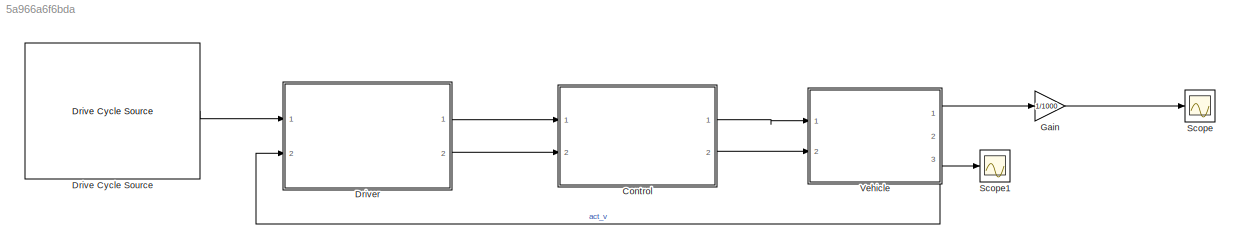
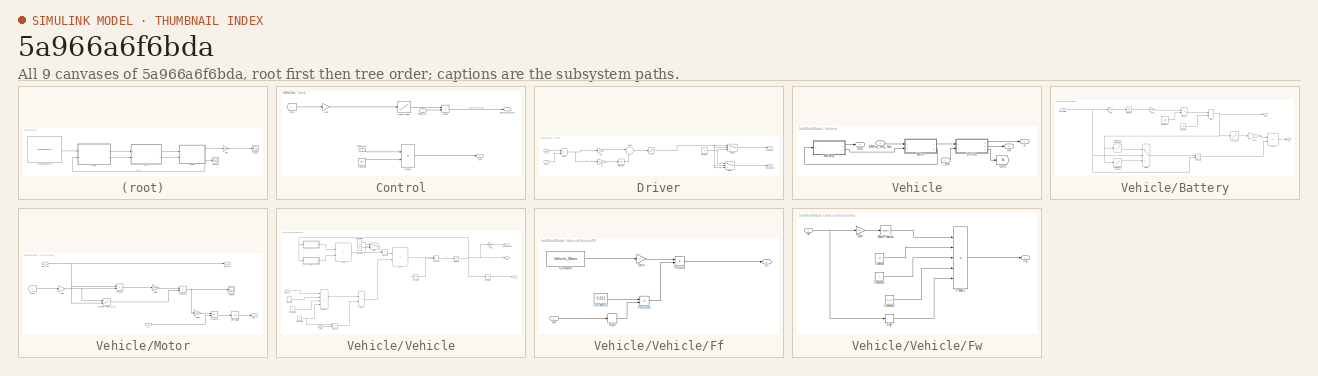
[diagram: thumbnail index - all 9 canvases of the model, root first then tree order]
MODEL slx_5a966a6f6bda
KIND model
CONFIG AbsTol = auto
CONFIG EnableMultiTasking = off
CONFIG FixedStep = 0.1
CONFIG MaxStep = auto
CONFIG MinStep = auto
CONFIG RelTol = 1e-3
CONFIG SampleTimeConstraint = Unconstrained
CONFIG Solver = ode1
CONFIG SolverName = ode1
CONFIG StartTime = 0.0
CONFIG StopTime = 1180*18
BLOCK [SubSystem] Control
  Ports = [2, 2]
  RequestExecContextInheritance = off
BLOCK [Constant] Control/Constant
  Value = 800
BLOCK [Product] Control/Divide
  Inputs = **
  Ports = [2, 1]
BLOCK [Outport] Control/EMTrq_req_Nm
BLOCK [From] Control/From
  TagVisibility = global
BLOCK [Gain] Control/Gain
  Gain = i
BLOCK [Lookup] Control/Lookup Table1
  InputValues = Mot_drive_n
  SaturateOnIntegerOverflow = off
  Table = Mot_drive_ttq
BLOCK [Inport] Control/Peddal_Acc
BLOCK [Inport] Control/Peddal_Brk
  Port = 2
BLOCK [Product] Control/Product
  Ports = [2, 1]
BLOCK [Outport] Control/T_Brk
  Port = 2
BLOCK [Reference] Drive Cycle Source  REF=autolibshared/Drive Cycle Source
  AttributesFormatString = %<cycleVar> (%<tfinal>)
  Ports = [0, 1]
  SourceBlock = autolibshared/Drive Cycle Source
  SourceProductBaseCode = PW,DR,MT,UV,VE
  SourceType = Drive Cycle Source
BLOCK [SubSystem] Driver
  Ports = [2, 2]
  RequestExecContextInheritance = off
BLOCK [Saturate] Driver/-1~1
  LowerLimit = -1
  UpperLimit = 1
BLOCK [Constant] Driver/Constant
  Value = 0
BLOCK [Integrator] Driver/Integrator
  Ports = [1, 1]
BLOCK [Gain] Driver/Ki
  Gain = 0.01
BLOCK [Gain] Driver/Kp
  Gain = 0.4
BLOCK [Outport] Driver/Paddal_Ac
BLOCK [Outport] Driver/Paddal_Brk
  Port = 2
BLOCK [Sum] Driver/Sum
  IconShape = rectangular
  Inputs = +-
  Ports = [2, 1]
BLOCK [Sum] Driver/Sum1
  Inputs = |++
  Ports = [2, 1]
BLOCK [Switch] Driver/Switch1
  InputSameDT = off
  SaturateOnIntegerOverflow = off
BLOCK [Switch] Driver/Switch2
  InputSameDT = off
  SaturateOnIntegerOverflow = off
BLOCK [Inport] Driver/act_v
  Port = 2
BLOCK [Inport] Driver/req_v
BLOCK [Gain] Gain
  Gain = 1/1000
BLOCK [Scope] Scope
  Floating = off
  NumInputPorts = 1
  Ports = [1]
  ScopeSpecificationString = Simulink.scopes.TimeScopeBlockCfg('CurrentConfiguration', extmgr.ConfigurationSet(extmgr.Configuration('Core','General UI',true),extmgr.Configuration('Core','Source UI',true),extmgr.Configuration('Sources','WiredSimulink',true,'DataLoggingVariableName','ScopeData1'),extmgr.Configuration('Visuals','Time Domain',true,'SerializedDisplays',{struct('MinYLimReal','-24.78118','MaxYLimReal','223.03062','Y...<+1447ch>
BLOCK [Scope] Scope1
  Floating = off
  NumInputPorts = 1
  Ports = [1]
  ScopeSpecificationString = Simulink.scopes.TimeScopeBlockCfg('CurrentConfiguration', extmgr.ConfigurationSet(extmgr.Configuration('Core','General UI',true),extmgr.Configuration('Core','Source UI',true),extmgr.Configuration('Sources','WiredSimulink',true,'DataLoggingVariableName','ScopeData2'),extmgr.Configuration('Visuals','Time Domain',true,'SerializedDisplays',{struct('MinYLimReal','-0.07491','MaxYLimReal','1.00832','YLab...<+1423ch>
BLOCK [SubSystem] Vehicle
  Ports = [2, 3]
  RequestExecContextInheritance = off
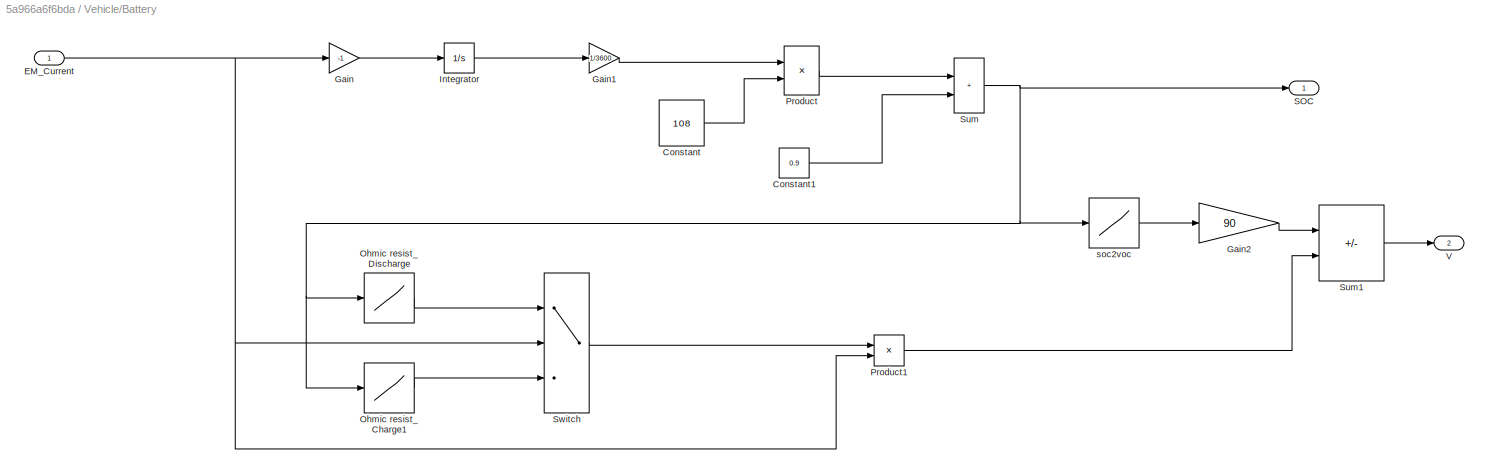
BLOCK [SubSystem] Vehicle/Battery
  Ports = [1, 2]
  RequestExecContextInheritance = off
BLOCK [Constant] Vehicle/Battery/Constant
  Value = 108
BLOCK [Constant] Vehicle/Battery/Constant1
  Value = 0.9
BLOCK [Inport] Vehicle/Battery/EM_Current
BLOCK [Gain] Vehicle/Battery/Gain
  Gain = -1
BLOCK [Gain] Vehicle/Battery/Gain1
  Gain = 1/3600
BLOCK [Gain] Vehicle/Battery/Gain2
  Gain = 90
BLOCK [Integrator] Vehicle/Battery/Integrator
  Ports = [1, 1]
BLOCK [Lookup] Vehicle/Battery/Ohmic resist_Charge1
  InputValues = [0,0.1,0.2,0.4,0.6,0.8,1]
  SaturateOnIntegerOverflow = off
  Table = [0.02536,0.012695,0.0080907,0.006409000000000001,0.006565,0.0071812,0.0074386]
BLOCK [Lookup] Vehicle/Battery/Ohmic resist_Discharge
  InputValues = [0,0.1,0.2,0.4,0.6,0.8,1]
  SaturateOnIntegerOverflow = off
  Table = [0.02536,0.012695,0.0080907,0.006409000000000001,0.006565,0.0071812,0.0074386]
BLOCK [Product] Vehicle/Battery/Product
  Inputs = */
  Ports = [2, 1]
BLOCK [Product] Vehicle/Battery/Product1
  Ports = [2, 1]
BLOCK [Outport] Vehicle/Battery/SOC
BLOCK [Sum] Vehicle/Battery/Sum
  IconShape = rectangular
  Ports = [2, 1]
BLOCK [Sum] Vehicle/Battery/Sum1
  IconShape = rectangular
  Inputs = +-
  Ports = [2, 1]
BLOCK [Switch] Vehicle/Battery/Switch
  Criteria = u2 > Threshold
  InputSameDT = off
  SaturateOnIntegerOverflow = off
BLOCK [Outport] Vehicle/Battery/V
  Port = 2
BLOCK [Lookup] Vehicle/Battery/soc2voc
  InputValues = [0,0.1,0.2,0.4,0.6,0.8,1]
  SaturateOnIntegerOverflow = off
  Table = [3.31144,3.54994000000000013,3.63898,3.72908,3.8329600000000004,3.9771199999999998,4.131880000000001]
BLOCK [Inport] Vehicle/EMTrq_req_Nm
BLOCK [Goto] Vehicle/Goto
  TagVisibility = global
BLOCK [SubSystem] Vehicle/Motor
  Ports = [2, 2]
  RequestExecContextInheritance = off
BLOCK [Outport] Vehicle/Motor/EM_Act
BLOCK [Outport] Vehicle/Motor/EM_I
  Port = 2
BLOCK [Inport] Vehicle/Motor/EM_Trq
BLOCK [From] Vehicle/Motor/From
  TagVisibility = global
BLOCK [Gain] Vehicle/Motor/Gain
  Gain = i
BLOCK [Gain] Vehicle/Motor/Gain1
  Gain = 1/9550
BLOCK [Gain] Vehicle/Motor/Gain2
  Gain = 1000
BLOCK [Lookup2D] Vehicle/Motor/Lookup Table (2-D)
  ColumnIndex = [30,60,92,120,150,180]
  InputSameDT = off
  LookUpMeth = Interpolation-Use End Values
  RowIndex = [500,1000	,2000,3200,4000,5000,6000,7000,8000,9000,10000]
  SaturateOnIntegerOverflow = off
  Table = Mot_eff
BLOCK [Product] Vehicle/Motor/Product
  Ports = [2, 1]
BLOCK [Product] Vehicle/Motor/Product1
  Ports = [2, 1]
BLOCK [Product] Vehicle/Motor/Product2
  Inputs = */
  Ports = [2, 1]
BLOCK [Scope] Vehicle/Motor/Scope
  Floating = off
  NumInputPorts = 1
  Ports = [1]
  ScopeSpecificationString = Simulink.scopes.TimeScopeBlockCfg('CurrentConfiguration', extmgr.ConfigurationSet(extmgr.Configuration('Core','General UI',true),extmgr.Configuration('Core','Source UI',true),extmgr.Configuration('Sources','WiredSimulink',true),extmgr.Configuration('Visuals','Time Domain',true),extmgr.Configuration('Tools','Plot Navigation',true),extmgr.Configuration('Tools','Measurements',true)),'Version','2021b'...<+1ch>
BLOCK [UnitDelay] Vehicle/Motor/Unit Delay
  HasFrameUpgradeWarning = on
  SampleTime = -1
BLOCK [Inport] Vehicle/Motor/V
  Port = 2
BLOCK [Outport] Vehicle/S
BLOCK [Outport] Vehicle/SOC
  Port = 3
BLOCK [Inport] Vehicle/T_Brk
  Port = 2
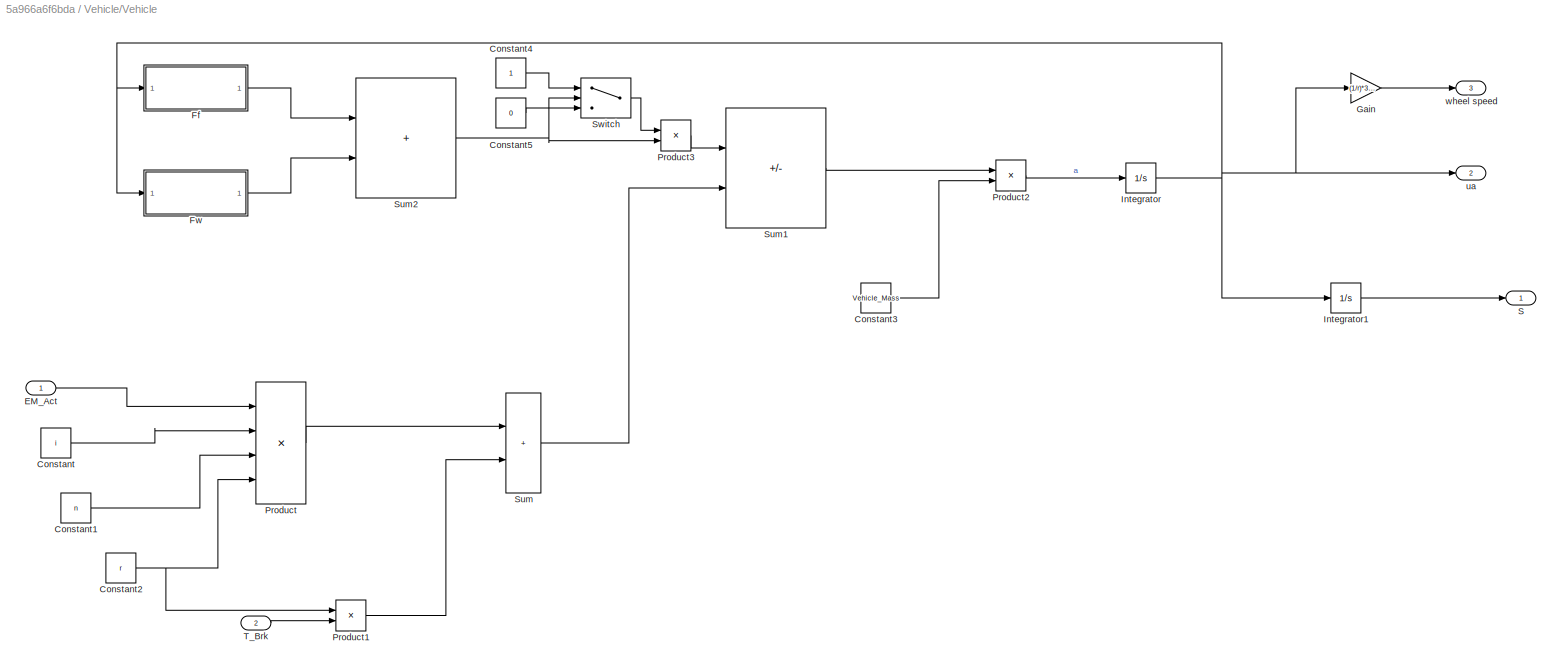
BLOCK [SubSystem] Vehicle/Vehicle
  Ports = [2, 3]
  RequestExecContextInheritance = off
BLOCK [Constant] Vehicle/Vehicle/Constant
  Value = i
BLOCK [Constant] Vehicle/Vehicle/Constant1
  Value = n
BLOCK [Constant] Vehicle/Vehicle/Constant2
  Value = r
BLOCK [Constant] Vehicle/Vehicle/Constant3
  Value = Vehicle_Mass
BLOCK [Constant] Vehicle/Vehicle/Constant4
BLOCK [Constant] Vehicle/Vehicle/Constant5
  Value = 0
BLOCK [Inport] Vehicle/Vehicle/EM_Act
BLOCK [SubSystem] Vehicle/Vehicle/Ff
  Ports = [1, 1]
  RequestExecContextInheritance = off
BLOCK [Constant] Vehicle/Vehicle/Ff/Constant
  Value = Vehicle_Mass
BLOCK [Constant] Vehicle/Vehicle/Ff/Constant1
  Value = 0.021
BLOCK [Outport] Vehicle/Vehicle/Ff/Ff
BLOCK [Gain] Vehicle/Vehicle/Ff/Gain
  Gain = g
BLOCK [Product] Vehicle/Vehicle/Ff/Product
  Ports = [2, 1]
BLOCK [Product] Vehicle/Vehicle/Ff/Product1
  Ports = [2, 1]
BLOCK [Signum] Vehicle/Vehicle/Ff/Sign
BLOCK [Inport] Vehicle/Vehicle/Ff/ua
BLOCK [SubSystem] Vehicle/Vehicle/Fw
  Ports = [1, 1]
  RequestExecContextInheritance = off
BLOCK [Constant] Vehicle/Vehicle/Fw/Constant
  Value = Cd
BLOCK [Constant] Vehicle/Vehicle/Fw/Constant1
  Value = A
BLOCK [Constant] Vehicle/Vehicle/Fw/Constant2
  Value = 21.15
BLOCK [Outport] Vehicle/Vehicle/Fw/Fw
BLOCK [Gain] Vehicle/Vehicle/Fw/Gain
  Gain = 3.6
BLOCK [Math] Vehicle/Vehicle/Fw/Math Function
  Operator = square
  Ports = [1, 1]
BLOCK [Product] Vehicle/Vehicle/Fw/Product1
  Inputs = ***/*
  Ports = [5, 1]
BLOCK [Signum] Vehicle/Vehicle/Fw/Sign
BLOCK [Inport] Vehicle/Vehicle/Fw/ua
BLOCK [Gain] Vehicle/Vehicle/Gain
  Gain = (1/r)*30/pi
BLOCK [Integrator] Vehicle/Vehicle/Integrator
  Ports = [1, 1]
BLOCK [Integrator] Vehicle/Vehicle/Integrator1
  Ports = [1, 1]
BLOCK [Product] Vehicle/Vehicle/Product
  Inputs = ***/
  Ports = [4, 1]
BLOCK [Product] Vehicle/Vehicle/Product1
  Inputs = /*
  Ports = [2, 1]
BLOCK [Product] Vehicle/Vehicle/Product2
  Inputs = */
  Ports = [2, 1]
BLOCK [Product] Vehicle/Vehicle/Product3
  Ports = [2, 1]
BLOCK [Outport] Vehicle/Vehicle/S
BLOCK [Sum] Vehicle/Vehicle/Sum
  IconShape = rectangular
  Inputs = |++
  Ports = [2, 1]
BLOCK [Sum] Vehicle/Vehicle/Sum1
  IconShape = rectangular
  Inputs = -+
  Ports = [2, 1]
BLOCK [Sum] Vehicle/Vehicle/Sum2
  IconShape = rectangular
  Ports = [2, 1]
BLOCK [Switch] Vehicle/Vehicle/Switch
  Criteria = u2 > Threshold
  InputSameDT = off
  SaturateOnIntegerOverflow = off
BLOCK [Inport] Vehicle/Vehicle/T_Brk
  Port = 2
BLOCK [Outport] Vehicle/Vehicle/ua
  Port = 2
BLOCK [Outport] Vehicle/Vehicle/wheel speed
  Port = 3
BLOCK [Outport] Vehicle/ua
  Port = 2
LINE Control/Constant:1 -> Control/Product:2
LINE Control/Divide:1 -> Control/EMTrq_req_Nm:1
LINE Control/From:1 -> Control/Gain:1
LINE Control/Gain:1 -> Control/Lookup Table1:1
LINE Control/Lookup Table1:1 -> Control/Divide:1
LINE Control/Peddal_Acc:1 -> Control/Divide:2
LINE Control/Peddal_Brk:1 -> Control/Product:1
LINE Control/Product:1 -> Control/T_Brk:1
LINE Control:1 -> Vehicle:1
LINE Control:2 -> Vehicle:2
LINE Drive Cycle Source:1 -> Driver:1
NET Driver/-1~1:1 -> Driver/Switch1:1, Driver/Switch1:2, Driver/Switch2:2, Driver/Switch2:3
NET Driver/Constant:1 -> Driver/Switch1:3, Driver/Switch2:1
LINE Driver/Integrator:1 -> Driver/Sum1:2
LINE Driver/Ki:1 -> Driver/Integrator:1
LINE Driver/Kp:1 -> Driver/Sum1:1
LINE Driver/Sum1:1 -> Driver/-1~1:1
NET Driver/Sum:1 -> Driver/Ki:1, Driver/Kp:1
LINE Driver/Switch1:1 -> Driver/Paddal_Ac:1
LINE Driver/Switch2:1 -> Driver/Paddal_Brk:1
LINE Driver/act_v:1 -> Driver/Sum:2
LINE Driver/req_v:1 -> Driver/Sum:1
LINE Driver:1 -> Control:1
LINE Driver:2 -> Control:2
LINE Gain:1 -> Scope:1
LINE Vehicle/Battery/Constant1:1 -> Vehicle/Battery/Sum:2
LINE Vehicle/Battery/Constant:1 -> Vehicle/Battery/Product:2
NET Vehicle/Battery/EM_Current:1 -> Vehicle/Battery/Gain:1, Vehicle/Battery/Product1:2, Vehicle/Battery/Switch:2
LINE Vehicle/Battery/Gain1:1 -> Vehicle/Battery/Product:1
LINE Vehicle/Battery/Gain2:1 -> Vehicle/Battery/Sum1:1
LINE Vehicle/Battery/Gain:1 -> Vehicle/Battery/Integrator:1
LINE Vehicle/Battery/Integrator:1 -> Vehicle/Battery/Gain1:1
LINE Vehicle/Battery/Ohmic resist_Charge1:1 -> Vehicle/Battery/Switch:3
LINE Vehicle/Battery/Ohmic resist_Discharge:1 -> Vehicle/Battery/Switch:1
LINE Vehicle/Battery/Product1:1 -> Vehicle/Battery/Sum1:2
LINE Vehicle/Battery/Product:1 -> Vehicle/Battery/Sum:1
LINE Vehicle/Battery/Sum1:1 -> Vehicle/Battery/V:1
NET Vehicle/Battery/Sum:1 -> Vehicle/Battery/Ohmic resist_Charge1:1, Vehicle/Battery/Ohmic resist_Discharge:1, Vehicle/Battery/SOC:1, Vehicle/Battery/soc2voc:1
LINE Vehicle/Battery/Switch:1 -> Vehicle/Battery/Product1:1
LINE Vehicle/Battery/soc2voc:1 -> Vehicle/Battery/Gain2:1
LINE Vehicle/Battery:1 -> Vehicle/SOC:1
LINE Vehicle/Battery:2 -> Vehicle/Motor:2
LINE Vehicle/EMTrq_req_Nm:1 -> Vehicle/Motor:1
NET Vehicle/Motor/EM_Trq:1 -> Vehicle/Motor/EM_Act:1, Vehicle/Motor/Lookup Table (2-D):2, Vehicle/Motor/Product:1
LINE Vehicle/Motor/From:1 -> Vehicle/Motor/Gain:1
LINE Vehicle/Motor/Gain1:1 -> Vehicle/Motor/Product1:1
LINE Vehicle/Motor/Gain2:1 -> Vehicle/Motor/Product2:1
NET Vehicle/Motor/Gain:1 -> Vehicle/Motor/Lookup Table (2-D):1, Vehicle/Motor/Product:2
LINE Vehicle/Motor/Lookup Table (2-D):1 -> Vehicle/Motor/Product1:2
NET Vehicle/Motor/Product1:1 -> Vehicle/Motor/Gain2:1, Vehicle/Motor/Scope:1
LINE Vehicle/Motor/Product2:1 -> Vehicle/Motor/Unit Delay:1
LINE Vehicle/Motor/Product:1 -> Vehicle/Motor/Gain1:1
LINE Vehicle/Motor/Unit Delay:1 -> Vehicle/Motor/EM_I:1
LINE Vehicle/Motor/V:1 -> Vehicle/Motor/Product2:2
LINE Vehicle/Motor:1 -> Vehicle/Vehicle:1
LINE Vehicle/Motor:2 -> Vehicle/Battery:1
LINE Vehicle/T_Brk:1 -> Vehicle/Vehicle:2
LINE Vehicle/Vehicle/Constant1:1 -> Vehicle/Vehicle/Product:3
NET Vehicle/Vehicle/Constant2:1 -> Vehicle/Vehicle/Product1:1, Vehicle/Vehicle/Product:4
LINE Vehicle/Vehicle/Constant3:1 -> Vehicle/Vehicle/Product2:2
LINE Vehicle/Vehicle/Constant4:1 -> Vehicle/Vehicle/Switch:1
LINE Vehicle/Vehicle/Constant5:1 -> Vehicle/Vehicle/Switch:3
LINE Vehicle/Vehicle/Constant:1 -> Vehicle/Vehicle/Product:2
LINE Vehicle/Vehicle/EM_Act:1 -> Vehicle/Vehicle/Product:1
LINE Vehicle/Vehicle/Ff/Constant1:1 -> Vehicle/Vehicle/Ff/Product1:1
LINE Vehicle/Vehicle/Ff/Constant:1 -> Vehicle/Vehicle/Ff/Gain:1
LINE Vehicle/Vehicle/Ff/Gain:1 -> Vehicle/Vehicle/Ff/Product:1
LINE Vehicle/Vehicle/Ff/Product1:1 -> Vehicle/Vehicle/Ff/Product:2
LINE Vehicle/Vehicle/Ff/Product:1 -> Vehicle/Vehicle/Ff/Ff:1
LINE Vehicle/Vehicle/Ff/Sign:1 -> Vehicle/Vehicle/Ff/Product1:2
LINE Vehicle/Vehicle/Ff/ua:1 -> Vehicle/Vehicle/Ff/Sign:1
LINE Vehicle/Vehicle/Ff:1 -> Vehicle/Vehicle/Sum2:1
LINE Vehicle/Vehicle/Fw/Constant1:1 -> Vehicle/Vehicle/Fw/Product1:3
LINE Vehicle/Vehicle/Fw/Constant2:1 -> Vehicle/Vehicle/Fw/Product1:4
LINE Vehicle/Vehicle/Fw/Constant:1 -> Vehicle/Vehicle/Fw/Product1:2
LINE Vehicle/Vehicle/Fw/Gain:1 -> Vehicle/Vehicle/Fw/Math Function:1
LINE Vehicle/Vehicle/Fw/Math Function:1 -> Vehicle/Vehicle/Fw/Product1:1
LINE Vehicle/Vehicle/Fw/Product1:1 -> Vehicle/Vehicle/Fw/Fw:1
LINE Vehicle/Vehicle/Fw/Sign:1 -> Vehicle/Vehicle/Fw/Product1:5
NET Vehicle/Vehicle/Fw/ua:1 -> Vehicle/Vehicle/Fw/Gain:1, Vehicle/Vehicle/Fw/Sign:1
LINE Vehicle/Vehicle/Fw:1 -> Vehicle/Vehicle/Sum2:2
LINE Vehicle/Vehicle/Gain:1 -> Vehicle/Vehicle/wheel speed:1
LINE Vehicle/Vehicle/Integrator1:1 -> Vehicle/Vehicle/S:1
NET Vehicle/Vehicle/Integrator:1 -> Vehicle/Vehicle/Ff:1, Vehicle/Vehicle/Fw:1, Vehicle/Vehicle/Gain:1, Vehicle/Vehicle/Integrator1:1, Vehicle/Vehicle/ua:1
LINE Vehicle/Vehicle/Product1:1 -> Vehicle/Vehicle/Sum:2
LINE Vehicle/Vehicle/Product2:1 -> Vehicle/Vehicle/Integrator:1
LINE Vehicle/Vehicle/Product3:1 -> Vehicle/Vehicle/Sum1:1
LINE Vehicle/Vehicle/Product:1 -> Vehicle/Vehicle/Sum:1
LINE Vehicle/Vehicle/Sum1:1 -> Vehicle/Vehicle/Product2:1
NET Vehicle/Vehicle/Sum2:1 -> Vehicle/Vehicle/Product3:2, Vehicle/Vehicle/Switch:2
LINE Vehicle/Vehicle/Sum:1 -> Vehicle/Vehicle/Sum1:2
LINE Vehicle/Vehicle/Switch:1 -> Vehicle/Vehicle/Product3:1
LINE Vehicle/Vehicle/T_Brk:1 -> Vehicle/Vehicle/Product1:2
LINE Vehicle/Vehicle:1 -> Vehicle/S:1
LINE Vehicle/Vehicle:2 -> Vehicle/ua:1
LINE Vehicle/Vehicle:3 -> Vehicle/Goto:1
LINE Vehicle:1 -> Gain:1
LINE Vehicle:2 -> Driver:2
LINE Vehicle:3 -> Scope1:1
note: NET lines group one-source signal fan-out (src -> all destinations, sorted); 1:1 wires keep LINE
